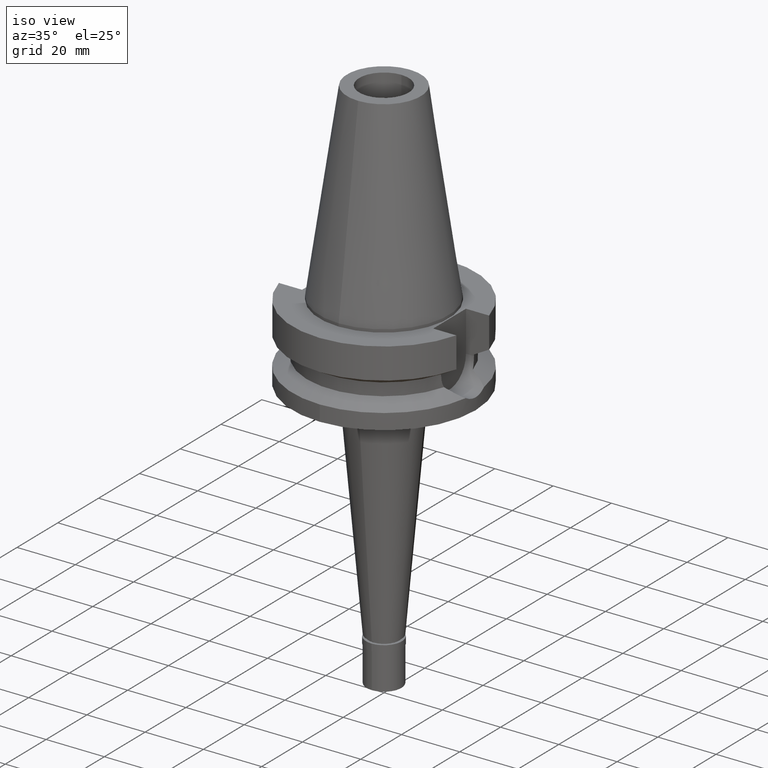
[diagram: clean part render]
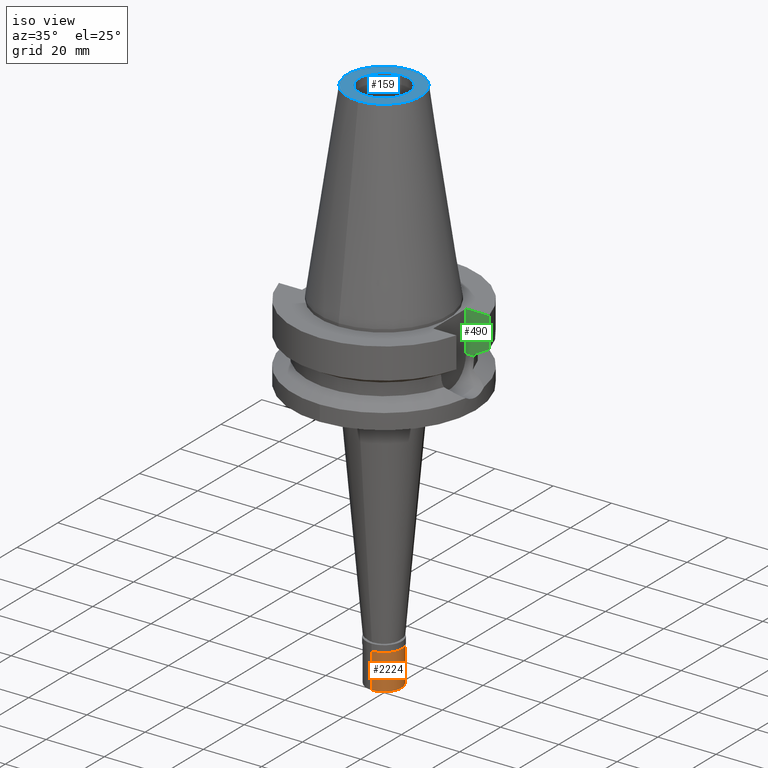
[diagram: same view with three faces highlighted in distinct colors, each labeled with its STEP entity id]
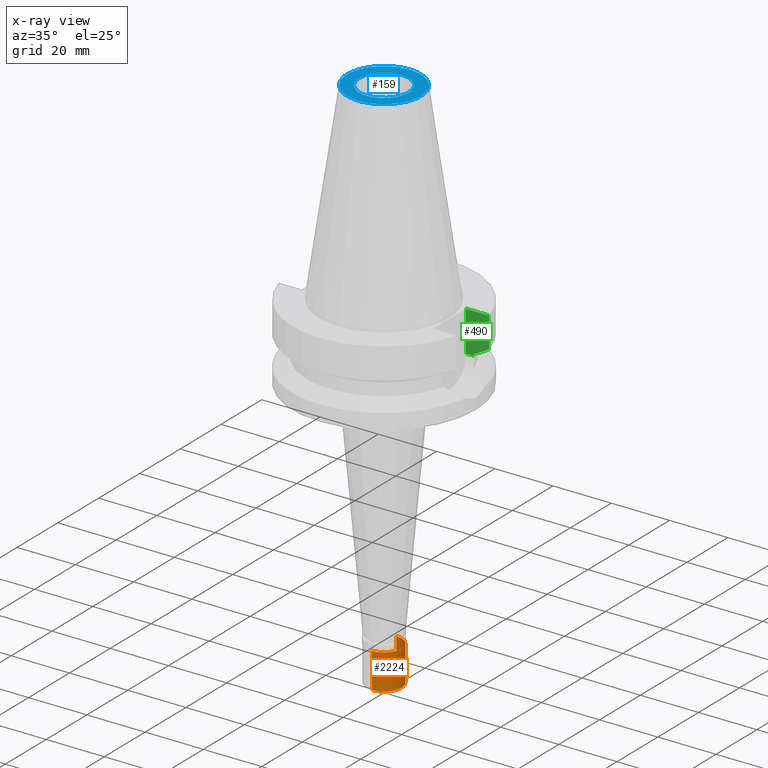
[diagram: x-ray of the same camera — body ghosted, the three highlighted faces saturated]
A machine part, iso view with three faces highlighted in distinct colors.
The next image is the same camera in x-ray (body ghosted, the three faces saturated) — at least one of them is partly hidden behind the body in this view.
Their STEP definitions:

[orange] entity #2224 — the highlighted cylindrical surface (edge-blend (fillet) strip) has radius 6 mm, axis along (0, 0, 1).
#77 = CARTESIAN_POINT ( 'NONE',  ( 0.0000000000000000000, 0.0000000000000000000, -14.50000000000000000 ) ) ;
#119 = AXIS2_PLACEMENT_3D ( 'NONE', #564, #591, #1652 ) ;
#175 = CARTESIAN_POINT ( 'NONE',  ( 0.0000000000000000000, -6.000000000000000000, -14.50000000000000000 ) ) ;
#196 = DIRECTION ( 'NONE',  ( 0.0000000000000000000, 1.000000000000000000, 0.0000000000000000000 ) ) ;
#212 = CYLINDRICAL_SURFACE ( 'NONE', #119, 6.000000000000000000 ) ;
#356 = DIRECTION ( 'NONE',  ( 0.0000000000000000000, 0.0000000000000000000, 1.000000000000000000 ) ) ;
#448 = CARTESIAN_POINT ( 'NONE',  ( 0.0000000000000000000, -6.000000000000000000, -2.299999999999999822 ) ) ;
#495 = CARTESIAN_POINT ( 'NONE',  ( 0.0000000000000000000, 6.000000000000000000, -2.299999999999999822 ) ) ;
#502 = ORIENTED_EDGE ( 'NONE', *, *, #1741, .T. ) ;
#549 = DIRECTION ( 'NONE',  ( 0.0000000000000000000, -1.000000000000000000, 0.0000000000000000000 ) ) ;
#564 = CARTESIAN_POINT ( 'NONE',  ( 0.0000000000000000000, 0.0000000000000000000, -15.22500000000000142 ) ) ;
#591 = DIRECTION ( 'NONE',  ( 0.0000000000000000000, 0.0000000000000000000, 1.000000000000000000 ) ) ;
#619 = CARTESIAN_POINT ( 'NONE',  ( 0.0000000000000000000, 6.000000000000000000, -14.50000000000000000 ) ) ;
#663 = VECTOR ( 'NONE', #1828, 1000.000000000000000 ) ;
#734 = VERTEX_POINT ( 'NONE', #495 ) ;
#766 = EDGE_LOOP ( 'NONE', ( #1860, #502, #2357, #1490 ) ) ;
#794 = LINE ( 'NONE', #1291, #1873 ) ;
#828 = CIRCLE ( 'NONE', #2477, 6.000000000000000000 ) ;
#927 = CARTESIAN_POINT ( 'NONE',  ( 0.0000000000000000000, -6.000000000000000000, -2.299999999999999822 ) ) ;
#1044 = CIRCLE ( 'NONE', #1191, 6.000000000000000000 ) ;
#1110 = EDGE_CURVE ( 'NONE', #734, #1972, #1044, .T. ) ;
#1191 = AXIS2_PLACEMENT_3D ( 'NONE', #1638, #2783, #196 ) ;
#1291 = CARTESIAN_POINT ( 'NONE',  ( 0.0000000000000000000, 6.000000000000000000, -2.299999999999999822 ) ) ;
#1391 = LINE ( 'NONE', #448, #663 ) ;
#1490 = ORIENTED_EDGE ( 'NONE', *, *, #1566, .F. ) ;
#1566 = EDGE_CURVE ( 'NONE', #734, #2075, #794, .T. ) ;
#1638 = CARTESIAN_POINT ( 'NONE',  ( 0.0000000000000000000, 0.0000000000000000000, -2.299999999999999822 ) ) ;
#1652 = DIRECTION ( 'NONE',  ( 0.0000000000000000000, 1.000000000000000000, 0.0000000000000000000 ) ) ;
#1741 = EDGE_CURVE ( 'NONE', #1972, #2848, #1391, .T. ) ;
#1828 = DIRECTION ( 'NONE',  ( 0.0000000000000000000, 0.0000000000000000000, -1.000000000000000000 ) ) ;
#1860 = ORIENTED_EDGE ( 'NONE', *, *, #1110, .T. ) ;
#1873 = VECTOR ( 'NONE', #2214, 1000.000000000000000 ) ;
#1972 = VERTEX_POINT ( 'NONE', #927 ) ;
#2045 = FACE_OUTER_BOUND ( 'NONE', #766, .T. ) ;
#2047 = EDGE_CURVE ( 'NONE', #2848, #2075, #828, .T. ) ;
#2075 = VERTEX_POINT ( 'NONE', #619 ) ;
#2214 = DIRECTION ( 'NONE',  ( 0.0000000000000000000, 0.0000000000000000000, -1.000000000000000000 ) ) ;
#2224 = ADVANCED_FACE ( 'NONE', ( #2045 ), #212, .T. ) ;
#2357 = ORIENTED_EDGE ( 'NONE', *, *, #2047, .T. ) ;
#2477 = AXIS2_PLACEMENT_3D ( 'NONE', #77, #356, #549 ) ;
#2783 = DIRECTION ( 'NONE',  ( 0.0000000000000000000, 0.0000000000000000000, -1.000000000000000000 ) ) ;
#2848 = VERTEX_POINT ( 'NONE', #175 ) ;

[blue] entity #159 — the highlighted planar face has unit normal (0, 0, -1).
#34 = CIRCLE ( 'NONE', #1367, 8.500000000000000000 ) ;
#69 = EDGE_LOOP ( 'NONE', ( #1327, #318 ) ) ;
#120 = VERTEX_POINT ( 'NONE', #1651 ) ;
#158 = DIRECTION ( 'NONE',  ( 0.0000000000000000000, -1.000000000000000000, 0.0000000000000000000 ) ) ;
#159 = ADVANCED_FACE ( 'NONE', ( #312, #2100 ), #2602, .F. ) ;
#271 = CARTESIAN_POINT ( 'NONE',  ( 0.0000000000000000000, 2.025565805790000122E-14, 65.40000000000000568 ) ) ;
#312 = FACE_OUTER_BOUND ( 'NONE', #69, .T. ) ;
#318 = ORIENTED_EDGE ( 'NONE', *, *, #772, .F. ) ;
#384 = DIRECTION ( 'NONE',  ( 0.0000000000000000000, 0.0000000000000000000, -1.000000000000000000 ) ) ;
#511 = ORIENTED_EDGE ( 'NONE', *, *, #559, .F. ) ;
#519 = VERTEX_POINT ( 'NONE', #2847 ) ;
#559 = EDGE_CURVE ( 'NONE', #120, #1120, #1235, .T. ) ;
#621 = CARTESIAN_POINT ( 'NONE',  ( 0.0000000000000000000, 2.136641270472000125E-14, 65.40000000000000568 ) ) ;
#707 = EDGE_CURVE ( 'NONE', #519, #2806, #2832, .T. ) ;
#772 = EDGE_CURVE ( 'NONE', #2806, #519, #2064, .T. ) ;
#855 = DIRECTION ( 'NONE',  ( 0.0000000000000000000, 0.0000000000000000000, 1.000000000000000000 ) ) ;
#1031 = CARTESIAN_POINT ( 'NONE',  ( 0.0000000000000000000, -12.68766899429999917, 65.40000000000000568 ) ) ;
#1045 = DIRECTION ( 'NONE',  ( 0.0000000000000000000, 0.0000000000000000000, 1.000000000000000000 ) ) ;
#1102 = CARTESIAN_POINT ( 'NONE',  ( 0.0000000000000000000, -8.500000000000000000, 65.40000000000000568 ) ) ;
#1120 = VERTEX_POINT ( 'NONE', #1102 ) ;
#1235 = CIRCLE ( 'NONE', #1279, 8.500000000000000000 ) ;
#1279 = AXIS2_PLACEMENT_3D ( 'NONE', #2416, #1045, #2598 ) ;
#1293 = DIRECTION ( 'NONE',  ( 0.0000000000000000000, -1.000000000000000000, 0.0000000000000000000 ) ) ;
#1327 = ORIENTED_EDGE ( 'NONE', *, *, #707, .F. ) ;
#1367 = AXIS2_PLACEMENT_3D ( 'NONE', #621, #855, #158 ) ;
#1432 = AXIS2_PLACEMENT_3D ( 'NONE', #1878, #384, #1293 ) ;
#1555 = DIRECTION ( 'NONE',  ( 0.0000000000000000000, 0.0000000000000000000, -1.000000000000000000 ) ) ;
#1651 = CARTESIAN_POINT ( 'NONE',  ( 0.0000000000000000000, 8.500000000000000000, 65.40000000000000568 ) ) ;
#1685 = EDGE_LOOP ( 'NONE', ( #511, #2549 ) ) ;
#1878 = CARTESIAN_POINT ( 'NONE',  ( 0.0000000000000000000, 1.625106302469000024E-14, 65.40000000000000568 ) ) ;
#1890 = DIRECTION ( 'NONE',  ( 0.0000000000000000000, 0.0000000000000000000, -1.000000000000000000 ) ) ;
#1916 = DIRECTION ( 'NONE',  ( 0.0000000000000000000, -1.000000000000000000, 0.0000000000000000000 ) ) ;
#2064 = CIRCLE ( 'NONE', #1432, 12.68766899429999917 ) ;
#2100 = FACE_BOUND ( 'NONE', #1685, .T. ) ;
#2275 = DIRECTION ( 'NONE',  ( 0.0000000000000000000, 1.000000000000000000, 0.0000000000000000000 ) ) ;
#2416 = CARTESIAN_POINT ( 'NONE',  ( 0.0000000000000000000, 2.136641270472000125E-14, 65.40000000000000568 ) ) ;
#2549 = ORIENTED_EDGE ( 'NONE', *, *, #2941, .F. ) ;
#2553 = AXIS2_PLACEMENT_3D ( 'NONE', #2714, #1555, #2275 ) ;
#2598 = DIRECTION ( 'NONE',  ( 0.0000000000000000000, 1.000000000000000000, 0.0000000000000000000 ) ) ;
#2602 = PLANE ( 'NONE',  #2831 ) ;
#2714 = CARTESIAN_POINT ( 'NONE',  ( 0.0000000000000000000, 1.625106302469000024E-14, 65.40000000000000568 ) ) ;
#2806 = VERTEX_POINT ( 'NONE', #1031 ) ;
#2831 = AXIS2_PLACEMENT_3D ( 'NONE', #271, #1890, #1916 ) ;
#2832 = CIRCLE ( 'NONE', #2553, 12.68766899429999917 ) ;
#2847 = CARTESIAN_POINT ( 'NONE',  ( 0.0000000000000000000, 12.68766899429999917, 65.40000000000000568 ) ) ;
#2941 = EDGE_CURVE ( 'NONE', #1120, #120, #34, .T. ) ;

[green] entity #490 — the highlighted planar face has unit normal (0, 1, 0).
#14 = EDGE_CURVE ( 'NONE', #1928, #65, #1117, .T. ) ;
#65 = VERTEX_POINT ( 'NONE', #414 ) ;
#93 = VECTOR ( 'NONE', #807, 1000.000000000000000 ) ;
#108 = DIRECTION ( 'NONE',  ( 0.0000000000000000000, 0.0000000000000000000, -1.000000000000000000 ) ) ;
#141 = DIRECTION ( 'NONE',  ( -0.0000000000000000000, 1.000000000000000000, 0.0000000000000000000 ) ) ;
#233 = ORIENTED_EDGE ( 'NONE', *, *, #520, .F. ) ;
#241 = CARTESIAN_POINT ( 'NONE',  ( 25.24772413117000269, 8.049995415923000053, -14.45229202694999948 ) ) ;
#255 = CARTESIAN_POINT ( 'NONE',  ( 30.45402291369000025, 8.049999277782001528, -11.56551215754000062 ) ) ;
#328 = VERTEX_POINT ( 'NONE', #2654 ) ;
#329 = VECTOR ( 'NONE', #108, 1000.000000000000000 ) ;
#414 = CARTESIAN_POINT ( 'NONE',  ( 30.45402272279000044, 8.050000000000000711, -1.000000000000000000 ) ) ;
#452 = EDGE_CURVE ( 'NONE', #583, #65, #788, .T. ) ;
#480 = EDGE_LOOP ( 'NONE', ( #233, #1003, #1936, #2167, #2417, #542 ) ) ;
#490 = ADVANCED_FACE ( 'NONE', ( #1207 ), #2157, .F. ) ;
#520 = EDGE_CURVE ( 'NONE', #1928, #2561, #732, .T. ) ;
#538 = EDGE_CURVE ( 'NONE', #583, #328, #2637, .T. ) ;
#542 = ORIENTED_EDGE ( 'NONE', *, *, #553, .T. ) ;
#553 = EDGE_CURVE ( 'NONE', #2210, #2561, #589, .T. ) ;
#573 = DIRECTION ( 'NONE',  ( 2.936640223266919013E-06, -9.210375733564746411E-06, 0.9999999999532726003 ) ) ;
#583 = VERTEX_POINT ( 'NONE', #1349 ) ;
#589 = LINE ( 'NONE', #1013, #1819 ) ;
#684 = EDGE_CURVE ( 'NONE', #328, #2210, #2908, .T. ) ;
#732 = B_SPLINE_CURVE_WITH_KNOTS ( 'NONE', 3,
 ( #776, #1466, #1030, #2399 ),
 .UNSPECIFIED., .F., .F.,
 ( 4, 4 ),
 ( 0.0000000000000000000, 1.000000000000000000 ),
 .UNSPECIFIED. ) ;
#776 = CARTESIAN_POINT ( 'NONE',  ( 30.45402291369000025, 8.049999277782001528, -11.56551215754000062 ) ) ;
#788 = LINE ( 'NONE', #1954, #93 ) ;
#807 = DIRECTION ( 'NONE',  ( 1.000000000000000000, -3.506251283225999947E-14, 0.0000000000000000000 ) ) ;
#835 = DIRECTION ( 'NONE',  ( 1.000000000000000000, -1.551559937893000172E-14, 0.0000000000000000000 ) ) ;
#1003 = ORIENTED_EDGE ( 'NONE', *, *, #14, .T. ) ;
#1013 = CARTESIAN_POINT ( 'NONE',  ( 25.24772266958000344, 8.050000000000000711, -14.94999999999999929 ) ) ;
#1030 = CARTESIAN_POINT ( 'NONE',  ( 26.83754616386287140, 8.049990821695068632, -13.57774887892811577 ) ) ;
#1117 = LINE ( 'NONE', #1813, #1629 ) ;
#1207 = FACE_OUTER_BOUND ( 'NONE', #480, .T. ) ;
#1349 = CARTESIAN_POINT ( 'NONE',  ( 22.50000000000000000, 8.050000000000000711, -1.000000000000000000 ) ) ;
#1466 = CARTESIAN_POINT ( 'NONE',  ( 28.57292329410695686, 8.049998556505153502, -12.61549605332372792 ) ) ;
#1542 = CARTESIAN_POINT ( 'NONE',  ( 25.24772266958000344, 8.050000000000000711, -14.94999999999999929 ) ) ;
#1549 = DIRECTION ( 'NONE',  ( -1.806872589257990685E-08, 6.835618889793962787E-08, 0.9999999999999974465 ) ) ;
#1629 = VECTOR ( 'NONE', #1549, 1000.000000000000114 ) ;
#1813 = CARTESIAN_POINT ( 'NONE',  ( 30.45402291369000025, 8.049999277782001528, -11.56551215754000062 ) ) ;
#1819 = VECTOR ( 'NONE', #573, 1000.000000000000000 ) ;
#1928 = VERTEX_POINT ( 'NONE', #255 ) ;
#1936 = ORIENTED_EDGE ( 'NONE', *, *, #452, .F. ) ;
#1954 = CARTESIAN_POINT ( 'NONE',  ( 22.50000000000000000, 8.050000000000000711, -1.000000000000000000 ) ) ;
#1983 = CARTESIAN_POINT ( 'NONE',  ( 22.50000000000000000, 8.050000000000000711, -14.94999999999999929 ) ) ;
#2157 = PLANE ( 'NONE',  #2877 ) ;
#2167 = ORIENTED_EDGE ( 'NONE', *, *, #538, .T. ) ;
#2171 = CARTESIAN_POINT ( 'NONE',  ( 22.50000000000000000, 8.050000000000000711, -1.000000000000000000 ) ) ;
#2210 = VERTEX_POINT ( 'NONE', #1542 ) ;
#2399 = CARTESIAN_POINT ( 'NONE',  ( 25.24772413117000269, 8.049995415923000053, -14.45229202694999948 ) ) ;
#2417 = ORIENTED_EDGE ( 'NONE', *, *, #684, .T. ) ;
#2454 = VECTOR ( 'NONE', #835, 1000.000000000000000 ) ;
#2561 = VERTEX_POINT ( 'NONE', #241 ) ;
#2637 = LINE ( 'NONE', #2171, #329 ) ;
#2652 = CARTESIAN_POINT ( 'NONE',  ( 22.50000000000000000, 8.050000000000000711, -14.94999999999999929 ) ) ;
#2654 = CARTESIAN_POINT ( 'NONE',  ( 22.50000000000000000, 8.050000000000000711, -14.94999999999999929 ) ) ;
#2876 = DIRECTION ( 'NONE',  ( 1.000000000000000000, 0.0000000000000000000, 0.0000000000000000000 ) ) ;
#2877 = AXIS2_PLACEMENT_3D ( 'NONE', #2652, #141, #2876 ) ;
#2908 = LINE ( 'NONE', #1983, #2454 ) ;